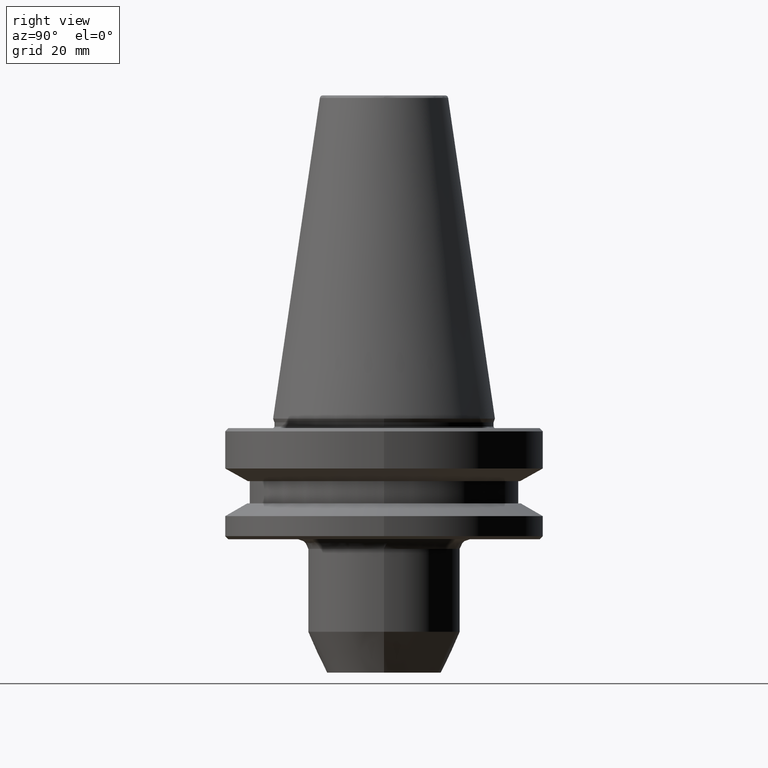
[diagram: clean part render]
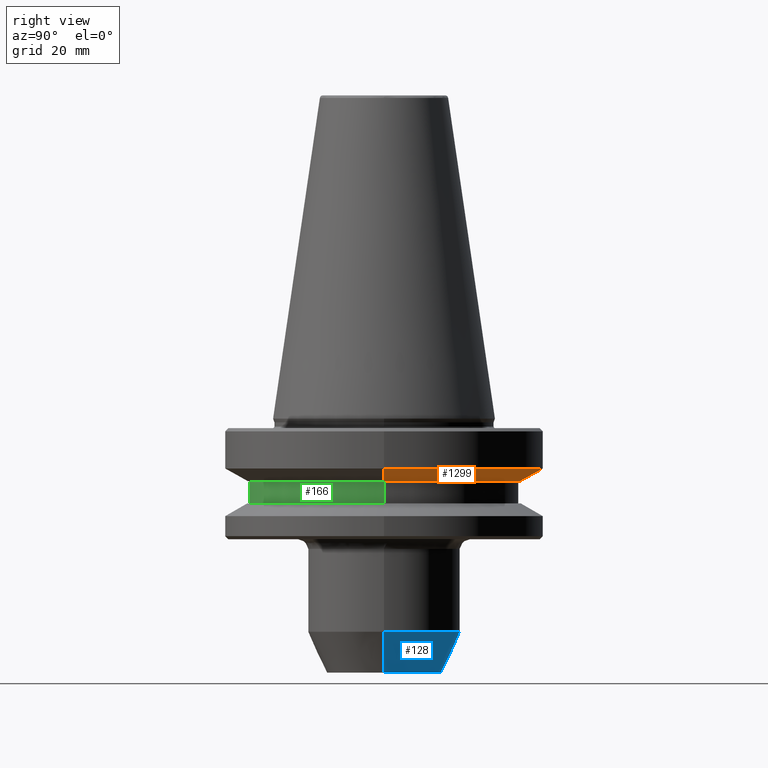
[diagram: same view with three faces highlighted in distinct colors, each labeled with its STEP entity id]
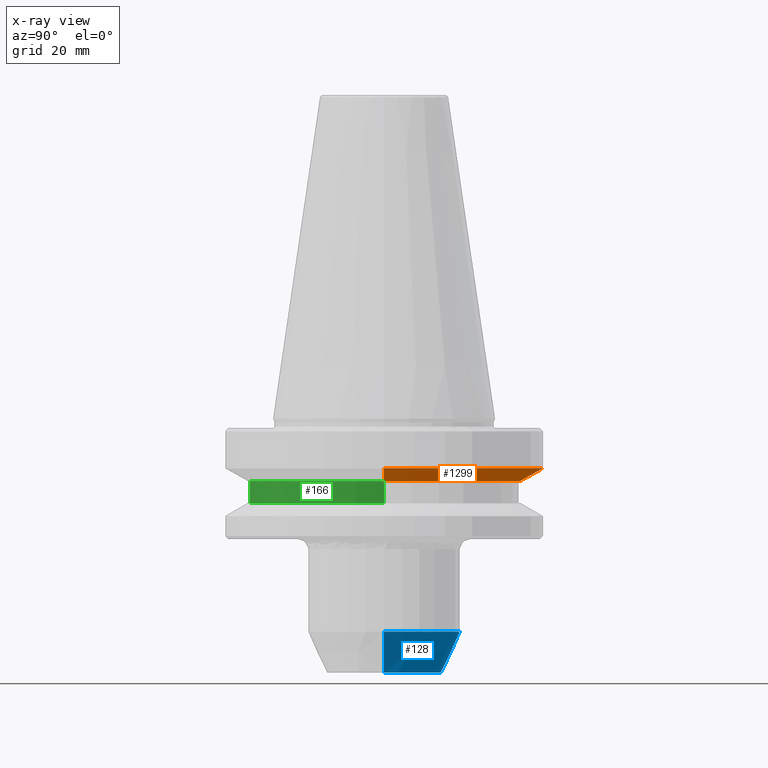
[diagram: x-ray of the same camera — body ghosted, the three highlighted faces saturated]
A machine part, right view with three faces highlighted in distinct colors.
The next image is the same camera in x-ray (body ghosted, the three faces saturated) — at least one of them is partly hidden behind the body in this view.
Their STEP definitions:

[orange] entity #1299 — the highlighted conical surface has half-angle 60 deg.
#108 = VERTEX_POINT ( 'NONE', #521 ) ;
#173 = ORIENTED_EDGE ( 'NONE', *, *, #1100, .F. ) ;
#264 = EDGE_LOOP ( 'NONE', ( #545, #559, #734, #173 ) ) ;
#307 = VECTOR ( 'NONE', #438, 1000.000000000000000 ) ;
#405 = AXIS2_PLACEMENT_3D ( 'NONE', #466, #459, #485 ) ;
#411 = DIRECTION ( 'NONE',  ( 1.000000000000000000, 0.0000000000000000000, 0.0000000000000000000 ) ) ;
#415 = DIRECTION ( 'NONE',  ( 0.0000000000000000000, -0.0000000000000000000, 1.000000000000000000 ) ) ;
#420 = CARTESIAN_POINT ( 'NONE',  ( 0.0000000000000000000, 0.0000000000000000000, -19.70000000000001000 ) ) ;
#438 = DIRECTION ( 'NONE',  ( -0.8660254037844388200, 1.060575238724907200E-016, 0.4999999999999997200 ) ) ;
#455 = CARTESIAN_POINT ( 'NONE',  ( -50.00000000000000000, 6.123233995736766100E-015, -15.70022000322675400 ) ) ;
#459 = DIRECTION ( 'NONE',  ( 0.0000000000000000000, -0.0000000000000000000, 1.000000000000000000 ) ) ;
#466 = CARTESIAN_POINT ( 'NONE',  ( 0.0000000000000000000, 0.0000000000000000000, -15.70022000322675400 ) ) ;
#483 = VERTEX_POINT ( 'NONE', #1326 ) ;
#485 = DIRECTION ( 'NONE',  ( 1.000000000000000000, 0.0000000000000000000, 0.0000000000000000000 ) ) ;
#521 = CARTESIAN_POINT ( 'NONE',  ( -50.00000000000000000, 6.123233995736766100E-015, -15.70022000322675400 ) ) ;
#545 = ORIENTED_EDGE ( 'NONE', *, *, #1323, .T. ) ;
#549 = DIRECTION ( 'NONE',  ( 1.000000000000000000, 0.0000000000000000000, 0.0000000000000000000 ) ) ;
#551 = DIRECTION ( 'NONE',  ( 0.0000000000000000000, 0.0000000000000000000, 1.000000000000000000 ) ) ;
#552 = CARTESIAN_POINT ( 'NONE',  ( 0.0000000000000000000, 0.0000000000000000000, -15.70022000322675400 ) ) ;
#559 = ORIENTED_EDGE ( 'NONE', *, *, #1306, .T. ) ;
#571 = AXIS2_PLACEMENT_3D ( 'NONE', #552, #551, #549 ) ;
#680 = CARTESIAN_POINT ( 'NONE',  ( 50.00000000000000000, 0.0000000000000000000, -15.70022000322675400 ) ) ;
#734 = ORIENTED_EDGE ( 'NONE', *, *, #1216, .F. ) ;
#749 = DIRECTION ( 'NONE',  ( 0.8660254037844388200, 0.0000000000000000000, 0.4999999999999997200 ) ) ;
#784 = CARTESIAN_POINT ( 'NONE',  ( 50.00000000000000000, 0.0000000000000000000, -15.70022000322675400 ) ) ;
#847 = AXIS2_PLACEMENT_3D ( 'NONE', #420, #415, #411 ) ;
#862 = CONICAL_SURFACE ( 'NONE', #405, 50.00000000000000000, 1.047197551196598100 ) ;
#877 = VERTEX_POINT ( 'NONE', #892 ) ;
#892 = CARTESIAN_POINT ( 'NONE',  ( -43.07217782649103600, 5.699027233244276000E-015, -19.70000000000001000 ) ) ;
#896 = FACE_OUTER_BOUND ( 'NONE', #264, .T. ) ;
#1006 = LINE ( 'NONE', #680, #1009 ) ;
#1009 = VECTOR ( 'NONE', #749, 1000.000000000000000 ) ;
#1033 = VERTEX_POINT ( 'NONE', #784 ) ;
#1100 = EDGE_CURVE ( 'NONE', #483, #1033, #1006, .T. ) ;
#1160 = CIRCLE ( 'NONE', #847, 43.07217782649103600 ) ;
#1167 = LINE ( 'NONE', #455, #307 ) ;
#1216 = EDGE_CURVE ( 'NONE', #1033, #108, #1293, .T. ) ;
#1293 = CIRCLE ( 'NONE', #571, 50.00000000000000000 ) ;
#1299 = ADVANCED_FACE ( 'NONE', ( #896 ), #862, .T. ) ;
#1306 = EDGE_CURVE ( 'NONE', #877, #108, #1167, .T. ) ;
#1323 = EDGE_CURVE ( 'NONE', #483, #877, #1160, .T. ) ;
#1326 = CARTESIAN_POINT ( 'NONE',  ( 43.07217782649103600, 0.0000000000000000000, -19.70000000000001000 ) ) ;

[blue] entity #128 — the highlighted conical surface has half-angle 25 deg.
#12 = DIRECTION ( 'NONE',  ( 0.0000000000000000000, 0.0000000000000000000, 1.000000000000000000 ) ) ;
#19 = DIRECTION ( 'NONE',  ( 0.0000000000000000000, -0.0000000000000000000, 1.000000000000000000 ) ) ;
#24 = EDGE_CURVE ( 'NONE', #60, #69, #753, .T. ) ;
#29 = VERTEX_POINT ( 'NONE', #1073 ) ;
#54 = DIRECTION ( 'NONE',  ( 0.0000000000000000000, -0.0000000000000000000, 1.000000000000000000 ) ) ;
#60 = VERTEX_POINT ( 'NONE', #800 ) ;
#69 = VERTEX_POINT ( 'NONE', #388 ) ;
#106 = VECTOR ( 'NONE', #189, 1000.000000000000000 ) ;
#116 = DIRECTION ( 'NONE',  ( 0.4226182617406937800, 0.0000000000000000000, 0.9063077870366526000 ) ) ;
#128 = ADVANCED_FACE ( 'NONE', ( #304 ), #603, .T. ) ;
#136 = EDGE_CURVE ( 'NONE', #29, #69, #215, .T. ) ;
#165 = EDGE_CURVE ( 'NONE', #966, #60, #373, .T. ) ;
#189 = DIRECTION ( 'NONE',  ( -0.4226182617406937800, 5.175581015019589800E-017, 0.9063077870366526000 ) ) ;
#215 = CIRCLE ( 'NONE', #956, 24.00000000000000000 ) ;
#224 = VECTOR ( 'NONE', #116, 1000.000000000000000 ) ;
#242 = CARTESIAN_POINT ( 'NONE',  ( 0.0000000000000000000, 0.0000000000000000000, -67.13295847694243400 ) ) ;
#304 = FACE_OUTER_BOUND ( 'NONE', #484, .T. ) ;
#312 = EDGE_CURVE ( 'NONE', #966, #29, #932, .T. ) ;
#373 = CIRCLE ( 'NONE', #903, 18.00000000000000000 ) ;
#388 = CARTESIAN_POINT ( 'NONE',  ( -24.00000000000000000, 2.939152317953647900E-015, -67.13295847694243400 ) ) ;
#412 = ORIENTED_EDGE ( 'NONE', *, *, #165, .T. ) ;
#484 = EDGE_LOOP ( 'NONE', ( #412, #490, #701, #1249 ) ) ;
#490 = ORIENTED_EDGE ( 'NONE', *, *, #24, .T. ) ;
#603 = CONICAL_SURFACE ( 'NONE', #607, 24.00000000000000000, 0.4363323129985761700 ) ;
#607 = AXIS2_PLACEMENT_3D ( 'NONE', #1076, #19, #612 ) ;
#612 = DIRECTION ( 'NONE',  ( 1.000000000000000000, 0.0000000000000000000, 0.0000000000000000000 ) ) ;
#641 = DIRECTION ( 'NONE',  ( 1.000000000000000000, 0.0000000000000000000, 0.0000000000000000000 ) ) ;
#646 = CARTESIAN_POINT ( 'NONE',  ( 0.0000000000000000000, 0.0000000000000000000, -80.00000000000000000 ) ) ;
#692 = CARTESIAN_POINT ( 'NONE',  ( -24.00000000000000000, 2.939152317953647900E-015, -67.13295847694243400 ) ) ;
#701 = ORIENTED_EDGE ( 'NONE', *, *, #136, .F. ) ;
#753 = LINE ( 'NONE', #692, #106 ) ;
#762 = DIRECTION ( 'NONE',  ( 1.000000000000000000, 0.0000000000000000000, 0.0000000000000000000 ) ) ;
#800 = CARTESIAN_POINT ( 'NONE',  ( -18.00000000000000000, 2.571758278209441300E-015, -80.00000000000000000 ) ) ;
#856 = CARTESIAN_POINT ( 'NONE',  ( 18.00000000000000000, 0.0000000000000000000, -80.00000000000000000 ) ) ;
#903 = AXIS2_PLACEMENT_3D ( 'NONE', #646, #54, #762 ) ;
#932 = LINE ( 'NONE', #948, #224 ) ;
#948 = CARTESIAN_POINT ( 'NONE',  ( 24.00000000000000000, 0.0000000000000000000, -67.13295847694243400 ) ) ;
#956 = AXIS2_PLACEMENT_3D ( 'NONE', #242, #12, #641 ) ;
#966 = VERTEX_POINT ( 'NONE', #856 ) ;
#1073 = CARTESIAN_POINT ( 'NONE',  ( 24.00000000000000000, 0.0000000000000000000, -67.13295847694243400 ) ) ;
#1076 = CARTESIAN_POINT ( 'NONE',  ( 0.0000000000000000000, 0.0000000000000000000, -67.13295847694243400 ) ) ;
#1249 = ORIENTED_EDGE ( 'NONE', *, *, #312, .F. ) ;

[green] entity #166 — the highlighted cylindrical surface (partial cylindrical patch) has radius 42.5 mm, axis along (0, 0, 1).
#4 = DIRECTION ( 'NONE',  ( 1.000000000000000000, 0.0000000000000000000, 0.0000000000000000000 ) ) ;
#8 = CARTESIAN_POINT ( 'NONE',  ( 0.0000000000000000000, 0.0000000000000000000, -19.70000000000001000 ) ) ;
#91 = ORIENTED_EDGE ( 'NONE', *, *, #231, .T. ) ;
#111 = DIRECTION ( 'NONE',  ( 1.000000000000000000, 0.0000000000000000000, 0.0000000000000000000 ) ) ;
#117 = LINE ( 'NONE', #180, #861 ) ;
#121 = CARTESIAN_POINT ( 'NONE',  ( 42.50000000000000000, 0.0000000000000000000, -26.69999999999998900 ) ) ;
#126 = VERTEX_POINT ( 'NONE', #957 ) ;
#166 = ADVANCED_FACE ( 'NONE', ( #225 ), #429, .T. ) ;
#180 = CARTESIAN_POINT ( 'NONE',  ( -42.50000000000000000, 5.204748896376250900E-015, 124.5046326327850600 ) ) ;
#209 = EDGE_CURVE ( 'NONE', #413, #126, #117, .T. ) ;
#225 = FACE_OUTER_BOUND ( 'NONE', #829, .T. ) ;
#231 = EDGE_CURVE ( 'NONE', #413, #365, #1129, .T. ) ;
#261 = EDGE_CURVE ( 'NONE', #585, #126, #930, .T. ) ;
#272 = DIRECTION ( 'NONE',  ( 0.0000000000000000000, 0.0000000000000000000, 1.000000000000000000 ) ) ;
#293 = AXIS2_PLACEMENT_3D ( 'NONE', #1268, #601, #4 ) ;
#365 = VERTEX_POINT ( 'NONE', #121 ) ;
#413 = VERTEX_POINT ( 'NONE', #1307 ) ;
#429 = CYLINDRICAL_SURFACE ( 'NONE', #553, 42.50000000000000000 ) ;
#432 = DIRECTION ( 'NONE',  ( 1.000000000000000000, 0.0000000000000000000, 0.0000000000000000000 ) ) ;
#451 = ORIENTED_EDGE ( 'NONE', *, *, #467, .T. ) ;
#467 = EDGE_CURVE ( 'NONE', #365, #585, #876, .T. ) ;
#548 = DIRECTION ( 'NONE',  ( 0.0000000000000000000, 0.0000000000000000000, 1.000000000000000000 ) ) ;
#553 = AXIS2_PLACEMENT_3D ( 'NONE', #723, #548, #432 ) ;
#585 = VERTEX_POINT ( 'NONE', #1222 ) ;
#601 = DIRECTION ( 'NONE',  ( 0.0000000000000000000, 0.0000000000000000000, 1.000000000000000000 ) ) ;
#711 = DIRECTION ( 'NONE',  ( -0.0000000000000000000, -0.0000000000000000000, -1.000000000000000000 ) ) ;
#723 = CARTESIAN_POINT ( 'NONE',  ( 0.0000000000000000000, 0.0000000000000000000, 124.5046326327850600 ) ) ;
#795 = ORIENTED_EDGE ( 'NONE', *, *, #261, .T. ) ;
#829 = EDGE_LOOP ( 'NONE', ( #1198, #91, #451, #795 ) ) ;
#861 = VECTOR ( 'NONE', #272, 1000.000000000000000 ) ;
#876 = LINE ( 'NONE', #1345, #1228 ) ;
#930 = CIRCLE ( 'NONE', #946, 42.50000000000000000 ) ;
#946 = AXIS2_PLACEMENT_3D ( 'NONE', #8, #711, #111 ) ;
#957 = CARTESIAN_POINT ( 'NONE',  ( -42.50000000000000000, 5.204748896376250900E-015, -19.70000000000001000 ) ) ;
#1129 = CIRCLE ( 'NONE', #293, 42.50000000000000000 ) ;
#1198 = ORIENTED_EDGE ( 'NONE', *, *, #209, .F. ) ;
#1222 = CARTESIAN_POINT ( 'NONE',  ( 42.50000000000000000, 0.0000000000000000000, -19.70000000000001000 ) ) ;
#1228 = VECTOR ( 'NONE', #1303, 1000.000000000000000 ) ;
#1268 = CARTESIAN_POINT ( 'NONE',  ( 0.0000000000000000000, 0.0000000000000000000, -26.69999999999998900 ) ) ;
#1303 = DIRECTION ( 'NONE',  ( 0.0000000000000000000, 0.0000000000000000000, 1.000000000000000000 ) ) ;
#1307 = CARTESIAN_POINT ( 'NONE',  ( -42.50000000000000000, 5.204748896376250900E-015, -26.69999999999998900 ) ) ;
#1345 = CARTESIAN_POINT ( 'NONE',  ( 42.50000000000000000, 0.0000000000000000000, 124.5046326327850600 ) ) ;